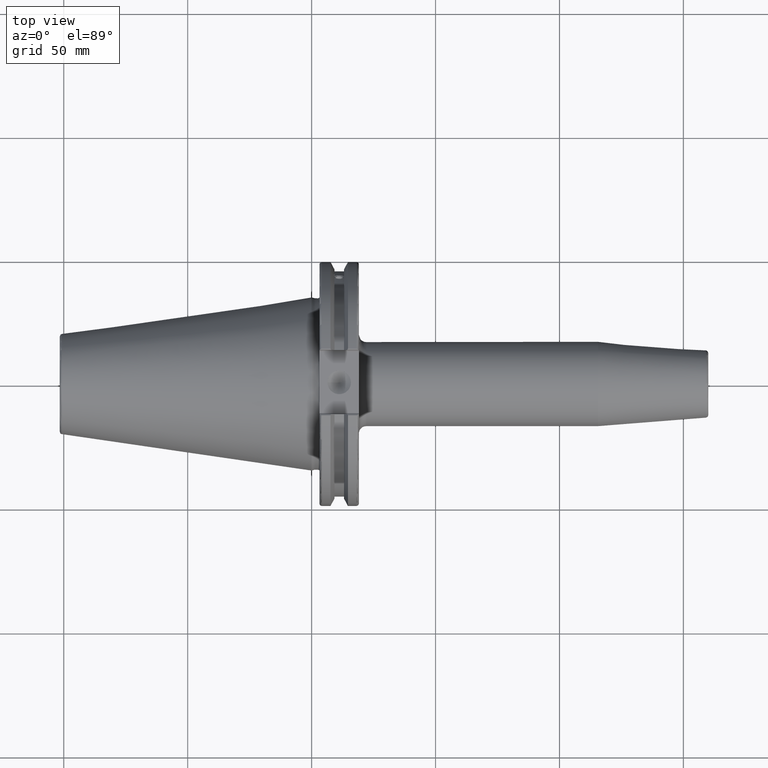
[diagram: clean part render]
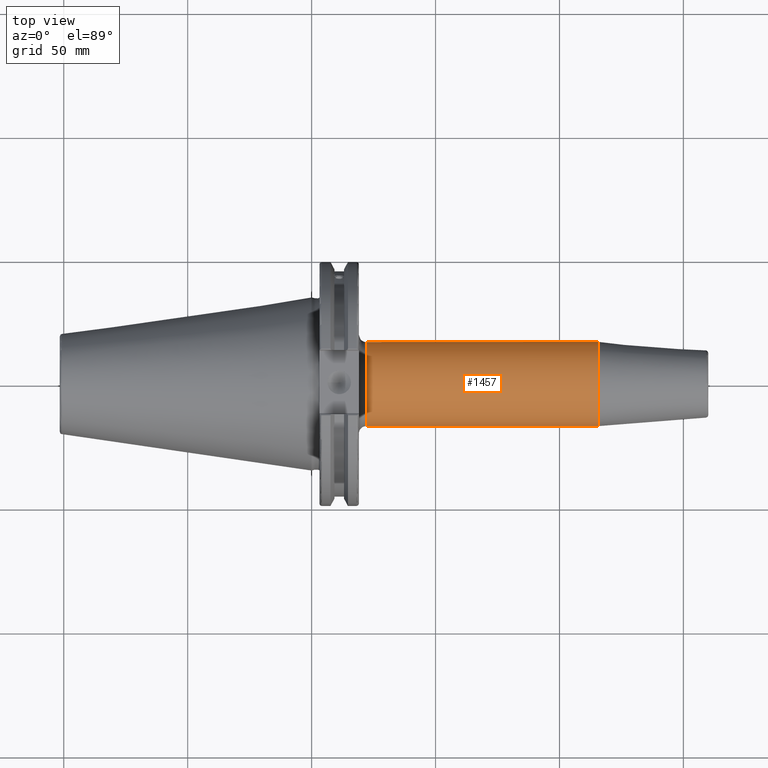
[diagram: same view with one face highlighted and labeled with its STEP entity id]
A machine part, top view. The second image highlights one B-rep face of the part: STEP entity #1457.
In plain terms, the highlighted cylindrical surface (bore or boss wall) has radius 17 mm, axis along (1, 0, 0).
Its self-contained STEP definition (entity closure, byte-faithful):
#86=LINE('',#2181,#178);
#178=VECTOR('',#1770,17.);
#269=CYLINDRICAL_SURFACE('',#1580,17.);
#358=FACE_OUTER_BOUND('',#445,.T.);
#445=EDGE_LOOP('',(#1021,#1022,#1023,#1024,#1025));
#553=CIRCLE('',#1574,17.);
#554=CIRCLE('',#1576,17.);
#557=CIRCLE('',#1579,17.);
#627=VERTEX_POINT('',#2169);
#628=VERTEX_POINT('',#2173);
#629=VERTEX_POINT('',#2174);
#781=EDGE_CURVE('',#627,#627,#553,.T.);
#782=EDGE_CURVE('',#628,#629,#554,.T.);
#785=EDGE_CURVE('',#629,#628,#557,.T.);
#786=EDGE_CURVE('',#627,#628,#86,.T.);
#1021=ORIENTED_EDGE('',*,*,#781,.F.);
#1022=ORIENTED_EDGE('',*,*,#786,.T.);
#1023=ORIENTED_EDGE('',*,*,#785,.F.);
#1024=ORIENTED_EDGE('',*,*,#782,.F.);
#1025=ORIENTED_EDGE('',*,*,#786,.F.);
#1457=ADVANCED_FACE('',(#358),#269,.T.);
#1574=AXIS2_PLACEMENT_3D('',#2171,#1756,#1757);
#1576=AXIS2_PLACEMENT_3D('',#2175,#1760,#1761);
#1579=AXIS2_PLACEMENT_3D('',#2179,#1766,#1767);
#1580=AXIS2_PLACEMENT_3D('',#2180,#1768,#1769);
#1756=DIRECTION('center_axis',(1.,0.,0.));
#1757=DIRECTION('ref_axis',(0.,0.,-1.));
#1760=DIRECTION('center_axis',(-1.,0.,0.));
#1761=DIRECTION('ref_axis',(0.,-1.,-1.22464679914735E-16));
#1766=DIRECTION('center_axis',(-1.,0.,0.));
#1767=DIRECTION('ref_axis',(0.,-1.,-1.22464679914735E-16));
#1768=DIRECTION('center_axis',(1.,0.,0.));
#1769=DIRECTION('ref_axis',(0.,1.,0.));
#1770=DIRECTION('',(-1.,0.,0.));
#2169=CARTESIAN_POINT('',(115.528283423388,-17.,-2.0818995585505E-15));
#2171=CARTESIAN_POINT('Origin',(115.528283423388,0.,0.));
#2173=CARTESIAN_POINT('',(22.05,-17.,-2.0818995585505E-15));
#2174=CARTESIAN_POINT('',(22.05,-2.0818995585505E-15,-17.));
#2175=CARTESIAN_POINT('Origin',(22.05,0.,0.));
#2179=CARTESIAN_POINT('Origin',(22.05,0.,0.));
#2180=CARTESIAN_POINT('Origin',(67.2891417116941,0.,0.));
#2181=CARTESIAN_POINT('',(67.2891417116941,-17.,-2.0818995585505E-15));